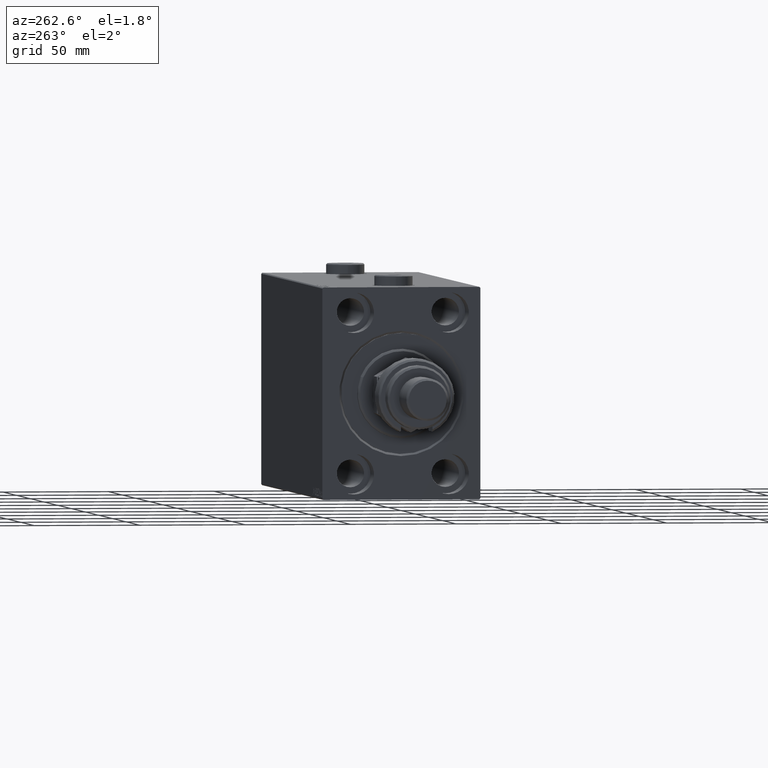
[diagram: clean part render]
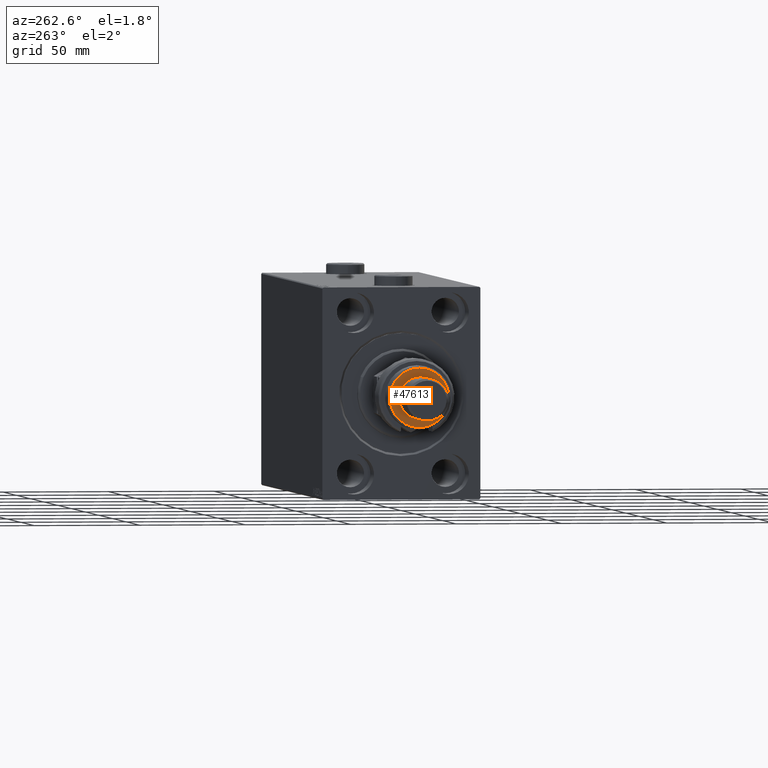
[diagram: same view with one face highlighted and labeled with its STEP entity id]
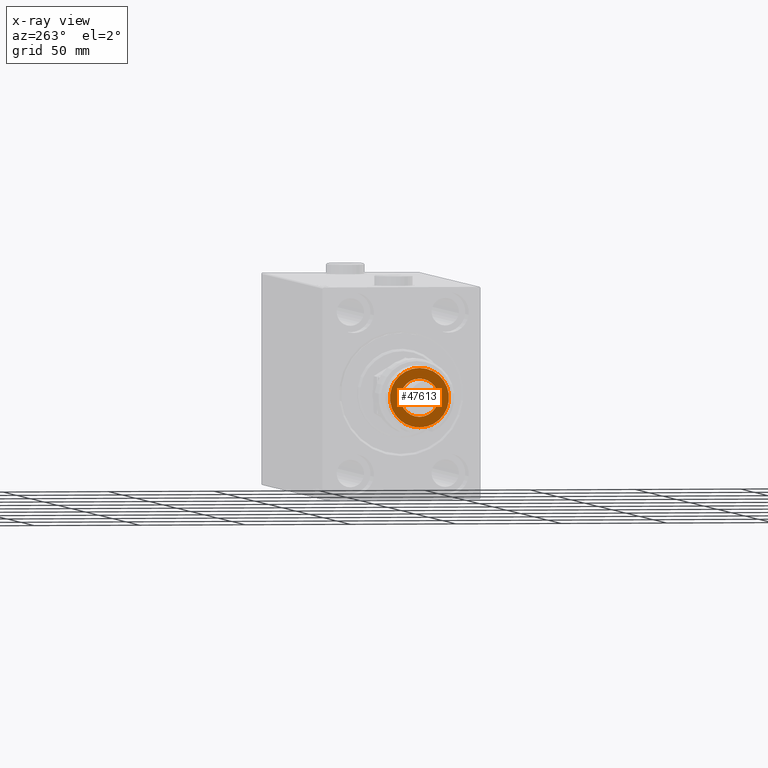
[diagram: x-ray of the same camera — body ghosted, the highlighted face saturated]
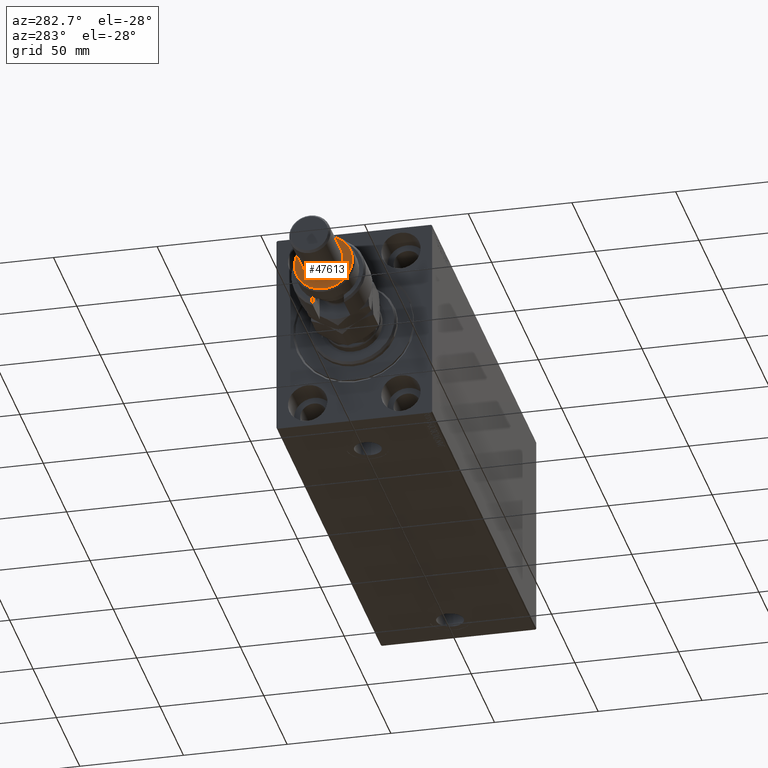
[diagram: same view with one face highlighted and labeled with its STEP entity id]
A machine part, auxiliary view. The second image highlights one B-rep face of the part: STEP entity #47613.
The next image is the same camera in x-ray: the body ghosted, the highlighted face saturated — about 0% of this face is hidden behind the body in this view.
A second angle (auxiliary view) of the same face is appended — the face is thin or edge-on in the first view.
In plain terms, the highlighted planar face has unit normal (-1, 0, 0).
Its self-contained STEP definition (entity closure, byte-faithful):
#9 = CIRCLE ( 'NONE', #2340, 9.000000000000000000 ) ;
#837 = AXIS2_PLACEMENT_3D ( 'NONE', #6783, #21631, #36508 ) ;
#1090 = EDGE_CURVE ( 'NONE', #25905, #37522, #9, .T. ) ;
#2083 = CARTESIAN_POINT ( 'NONE',  ( 0.000000000000000000, 0.000000000000000000, 26.00000000000000355 ) ) ;
#2340 = AXIS2_PLACEMENT_3D ( 'NONE', #4852, #45521, #12874 ) ;
#2451 = CARTESIAN_POINT ( 'NONE',  ( -13.99999999999997513, 0.000000000000000000, 26.00000000000000355 ) ) ;
#2730 = VERTEX_POINT ( 'NONE', #2451 ) ;
#3476 = EDGE_CURVE ( 'NONE', #8918, #2730, #7069, .T. ) ;
#4852 = CARTESIAN_POINT ( 'NONE',  ( 0.000000000000000000, 0.000000000000000000, 26.00000000000000355 ) ) ;
#5209 = EDGE_CURVE ( 'NONE', #2730, #8918, #27336, .T. ) ;
#6200 = EDGE_CURVE ( 'NONE', #37522, #25905, #12588, .T. ) ;
#6783 = CARTESIAN_POINT ( 'NONE',  ( 0.000000000000000000, 0.000000000000000000, 26.00000000000000355 ) ) ;
#7069 = CIRCLE ( 'NONE', #837, 13.99999999999997513 ) ;
#7430 = DIRECTION ( 'NONE',  ( 0.000000000000000000, 0.000000000000000000, 1.000000000000000000 ) ) ;
#7887 = FACE_OUTER_BOUND ( 'NONE', #45416, .T. ) ;
#8542 = ORIENTED_EDGE ( 'NONE', *, *, #1090, .F. ) ;
#8918 = VERTEX_POINT ( 'NONE', #46036 ) ;
#11809 = CARTESIAN_POINT ( 'NONE',  ( 0.000000000000000000, 0.000000000000000000, 26.00000000000000355 ) ) ;
#12588 = CIRCLE ( 'NONE', #28942, 9.000000000000000000 ) ;
#12874 = DIRECTION ( 'NONE',  ( 1.000000000000000000, 0.000000000000000000, 0.000000000000000000 ) ) ;
#18082 = ORIENTED_EDGE ( 'NONE', *, *, #6200, .F. ) ;
#18348 = CARTESIAN_POINT ( 'NONE',  ( 9.000000000000000000, 1.102182119232617714E-15, 26.00000000000000355 ) ) ;
#19081 = DIRECTION ( 'NONE',  ( 0.000000000000000000, 0.000000000000000000, 1.000000000000000000 ) ) ;
#20121 = DIRECTION ( 'NONE',  ( 0.000000000000000000, 0.000000000000000000, 1.000000000000000000 ) ) ;
#21631 = DIRECTION ( 'NONE',  ( 0.000000000000000000, 0.000000000000000000, 1.000000000000000000 ) ) ;
#22736 = PLANE ( 'NONE',  #41044 ) ;
#23146 = CARTESIAN_POINT ( 'NONE',  ( -9.000000000000000000, 0.000000000000000000, 26.00000000000000355 ) ) ;
#25051 = ORIENTED_EDGE ( 'NONE', *, *, #3476, .T. ) ;
#25905 = VERTEX_POINT ( 'NONE', #23146 ) ;
#27336 = CIRCLE ( 'NONE', #44437, 13.99999999999997513 ) ;
#28641 = ORIENTED_EDGE ( 'NONE', *, *, #5209, .T. ) ;
#28942 = AXIS2_PLACEMENT_3D ( 'NONE', #11809, #7430, #44452 ) ;
#36508 = DIRECTION ( 'NONE',  ( 1.000000000000000000, 0.000000000000000000, 0.000000000000000000 ) ) ;
#37522 = VERTEX_POINT ( 'NONE', #18348 ) ;
#37599 = CARTESIAN_POINT ( 'NONE',  ( 0.000000000000000000, 0.000000000000000000, 26.00000000000000355 ) ) ;
#39339 = DIRECTION ( 'NONE',  ( 1.000000000000000000, 0.000000000000000000, 0.000000000000000000 ) ) ;
#40764 = DIRECTION ( 'NONE',  ( 1.000000000000000000, 0.000000000000000000, -0.000000000000000000 ) ) ;
#41044 = AXIS2_PLACEMENT_3D ( 'NONE', #37599, #19081, #40764 ) ;
#44437 = AXIS2_PLACEMENT_3D ( 'NONE', #2083, #20121, #39339 ) ;
#44452 = DIRECTION ( 'NONE',  ( 1.000000000000000000, 0.000000000000000000, 0.000000000000000000 ) ) ;
#45383 = FACE_BOUND ( 'NONE', #46023, .T. ) ;
#45416 = EDGE_LOOP ( 'NONE', ( #28641, #25051 ) ) ;
#45521 = DIRECTION ( 'NONE',  ( 0.000000000000000000, 0.000000000000000000, 1.000000000000000000 ) ) ;
#46023 = EDGE_LOOP ( 'NONE', ( #8542, #18082 ) ) ;
#46036 = CARTESIAN_POINT ( 'NONE',  ( 13.99999999999997513, 1.775737858763660437E-15, 26.00000000000000355 ) ) ;
#47613 = ADVANCED_FACE ( 'NONE', ( #7887, #45383 ), #22736, .T. ) ;